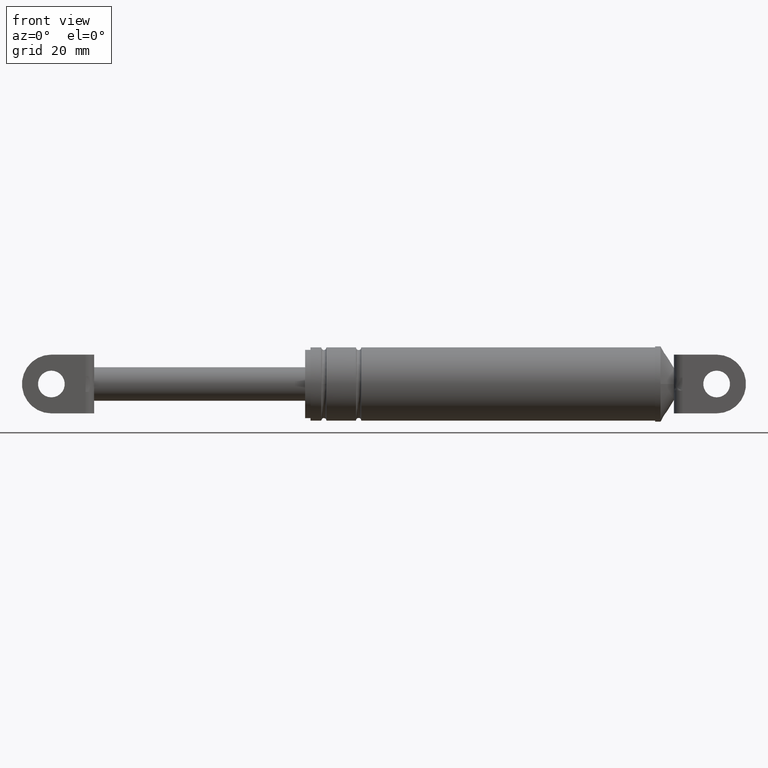
[diagram: clean part render]
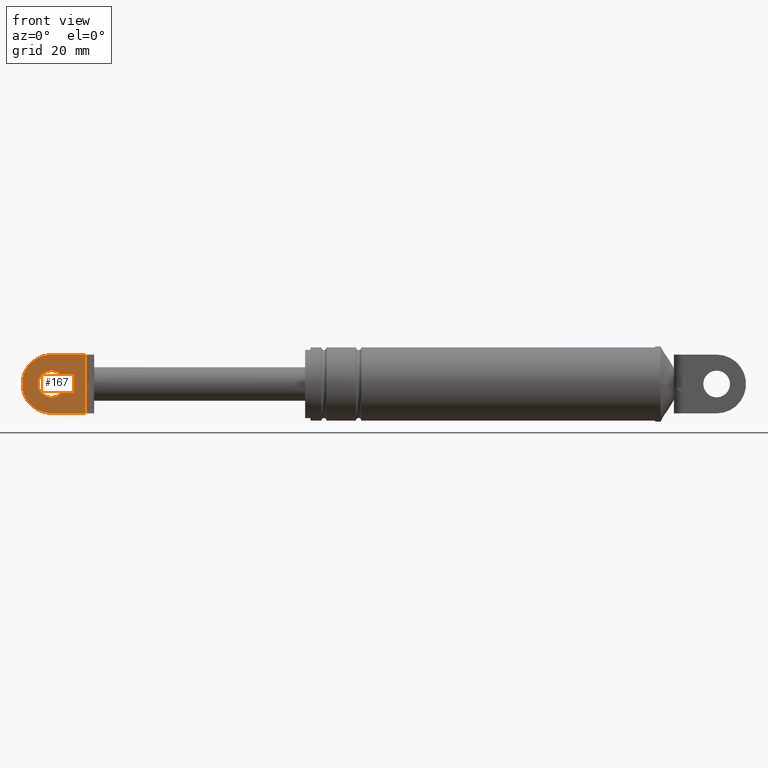
[diagram: same view with one face highlighted and labeled with its STEP entity id]
A machine part, front view. The second image highlights one B-rep face of the part: STEP entity #167.
In plain terms, the highlighted planar face has unit normal (0, 1, 0).
Its self-contained STEP definition (entity closure, byte-faithful):
#167=ADVANCED_FACE('',(#735,#736),#734,.F.);
#734=PLANE('',#1332);
#735=FACE_OUTER_BOUND('',#1333,.T.);
#736=FACE_BOUND('',#1334,.T.);
#1329=CARTESIAN_POINT('',(7.50580265450E+001,-8.69999700000E+000,1.57529320502E+002));
#1330=DIRECTION('',(0.00000000000E+000,1.00000000000E+000,0.00000000000E+000));
#1331=DIRECTION('',(0.00000000000E+000,0.00000000000E+000,1.00000000000E+000));
#1332=AXIS2_PLACEMENT_3D('',#1329,#1330,#1331);
#1333=EDGE_LOOP('',(#1654,#1655,#1656,#1657,#1658,#1659));
#1334=EDGE_LOOP('',(#1660,#1661));
#1654=ORIENTED_EDGE('',*,*,#1829,.F.);
#1655=ORIENTED_EDGE('',*,*,#1848,.T.);
#1656=ORIENTED_EDGE('',*,*,#1801,.T.);
#1657=ORIENTED_EDGE('',*,*,#1846,.T.);
#1658=ORIENTED_EDGE('',*,*,#1804,.T.);
#1659=ORIENTED_EDGE('',*,*,#1851,.T.);
#1660=ORIENTED_EDGE('',*,*,#1852,.F.);
#1661=ORIENTED_EDGE('',*,*,#1853,.F.);
#1801=EDGE_CURVE('',#2534,#2527,#2535,.T.);
#1804=EDGE_CURVE('',#2554,#2555,#2556,.T.);
#1829=EDGE_CURVE('',#2718,#2725,#2726,.T.);
#1846=EDGE_CURVE('',#2527,#2554,#2836,.T.);
#1848=EDGE_CURVE('',#2718,#2534,#2848,.T.);
#1851=EDGE_CURVE('',#2555,#2725,#2868,.T.);
#1852=EDGE_CURVE('',#2874,#2875,#2876,.T.);
#1853=EDGE_CURVE('',#2875,#2874,#2882,.T.);
#2527=VERTEX_POINT('',#3363);
#2534=VERTEX_POINT('',#3368);
#2535=(BOUNDED_CURVE() B_SPLINE_CURVE(3,(#3369,#3370,#3371,#3372,#3373,#3374,#3375,#3376,#3377,#3378),.UNSPECIFIED.,.F.,.F.) B_SPLINE_CURVE_WITH_KNOTS((4,2,2,2,4),(0.00000000000E+000,1.48458878572E-003,2.96917757145E-003,4.45376635717E-003,5.93835514290E-003),.UNSPECIFIED.) CURVE() GEOMETRIC_REPRESENTATION_ITEM() RATIONAL_B_SPLINE_CURVE((1.00000000000E+000,1.00000000000E+000,1.00000000000E+000,1.00000000000E+000,1.00000000000E+000,1.00000000000E+000,1.00000000000E+000,1.00000000000E+000,1.00000000000E+000,1.00000000000E+000)) REPRESENTATION_ITEM('') );
#2554=VERTEX_POINT('',#3388);
#2555=VERTEX_POINT('',#3389);
#2556=LINE('',#3390,#3391);
#2718=VERTEX_POINT('',#3489);
#2725=VERTEX_POINT('',#3494);
#2726=LINE('',#3495,#3496);
#2836=LINE('',#3568,#3569);
#2848=LINE('',#3575,#3576);
#2868=CIRCLE('',#3591,1.10000000000E+001);
#2874=VERTEX_POINT('',#3592);
#2875=VERTEX_POINT('',#3593);
#2876=CIRCLE('',#3597,5.00000000000E+000);
#2882=CIRCLE('',#3601,5.00000000000E+000);
#3363=CARTESIAN_POINT('',(1.01246942787E+002,-8.69999700000E+000,1.73697911582E+002));
#3368=CARTESIAN_POINT('',(1.01246942787E+002,-8.69999700000E+000,1.67760729422E+002));
#3369=CARTESIAN_POINT('',(1.01246942787E+002,-8.69999700000E+000,1.67760729422E+002));
#3370=CARTESIAN_POINT('',(1.01246942787E+002,-8.69999700000E+000,1.68255592543E+002));
#3371=CARTESIAN_POINT('',(1.01272482544E+002,-8.69999700000E+000,1.68749899025E+002));
#3372=CARTESIAN_POINT('',(1.01317705682E+002,-8.69999700000E+000,1.69738610499E+002));
#3373=CARTESIAN_POINT('',(1.01336045641E+002,-8.69999700000E+000,1.70233065764E+002));
#3374=CARTESIAN_POINT('',(1.01336105204E+002,-8.69999700000E+000,1.71222829544E+002));
#3375=CARTESIAN_POINT('',(1.01317790582E+002,-8.69999700000E+000,1.71718066519E+002));
#3376=CARTESIAN_POINT('',(1.01272537315E+002,-8.69999700000E+000,1.72707652024E+002));
#3377=CARTESIAN_POINT('',(1.01246942787E+002,-8.69999700000E+000,1.73202343015E+002));
#3378=CARTESIAN_POINT('',(1.01246942787E+002,-8.69999700000E+000,1.73697911582E+002));
#3388=CARTESIAN_POINT('',(1.01246942787E+002,-8.69999700000E+000,1.81729320502E+002));
#3389=CARTESIAN_POINT('',(8.84469418268E+001,-8.69999700000E+000,1.81729320502E+002));
#3390=CARTESIAN_POINT('',(1.01246942787E+002,-8.69999700000E+000,1.81729320502E+002));
#3391=VECTOR('',#3392,1.28000009599E+001);
#3392=DIRECTION('',(-1.00000000000E+000,0.00000000000E+000,0.00000000000E+000));
#3489=CARTESIAN_POINT('',(1.01246942787E+002,-8.69999700000E+000,1.59729320502E+002));
#3494=CARTESIAN_POINT('',(8.84469418268E+001,-8.69999700000E+000,1.59729320502E+002));
#3495=CARTESIAN_POINT('',(1.01246942787E+002,-8.69999700000E+000,1.59729320502E+002));
#3496=VECTOR('',#3497,1.28000009599E+001);
#3497=DIRECTION('',(-1.00000000000E+000,0.00000000000E+000,0.00000000000E+000));
#3568=CARTESIAN_POINT('',(1.01246942787E+002,-8.69999700000E+000,1.73697911582E+002));
#3569=VECTOR('',#3570,8.03140892004E+000);
#3570=DIRECTION('',(0.00000000000E+000,0.00000000000E+000,1.00000000000E+000));
#3575=CARTESIAN_POINT('',(1.01246942787E+002,-8.69999700000E+000,1.59729320502E+002));
#3576=VECTOR('',#3577,8.03140892004E+000);
#3577=DIRECTION('',(0.00000000000E+000,0.00000000000E+000,1.00000000000E+000));
#3588=CARTESIAN_POINT('',(8.84469427867E+001,-8.69999700000E+000,1.70729320502E+002));
#3589=DIRECTION('',(0.00000000000E+000,-1.00000000000E+000,0.00000000000E+000));
#3590=DIRECTION('',(-0.00000000000E+000,-0.00000000000E+000,-1.00000000000E+000));
#3591=AXIS2_PLACEMENT_3D('',#3588,#3589,#3590);
#3592=CARTESIAN_POINT('',(8.84469427867E+001,-8.69999700000E+000,1.65729320502E+002));
#3593=CARTESIAN_POINT('',(8.84469427867E+001,-8.69999700000E+000,1.75729320502E+002));
#3594=CARTESIAN_POINT('',(8.84469427867E+001,-8.69999700000E+000,1.70729320502E+002));
#3595=DIRECTION('',(-0.00000000000E+000,-1.00000000000E+000,0.00000000000E+000));
#3596=DIRECTION('',(-1.22460635382E-016,0.00000000000E+000,1.00000000000E+000));
#3597=AXIS2_PLACEMENT_3D('',#3594,#3595,#3596);
#3598=CARTESIAN_POINT('',(8.84469427867E+001,-8.69999700000E+000,1.70729320502E+002));
#3599=DIRECTION('',(-0.00000000000E+000,-1.00000000000E+000,0.00000000000E+000));
#3600=DIRECTION('',(-1.22460635382E-016,0.00000000000E+000,1.00000000000E+000));
#3601=AXIS2_PLACEMENT_3D('',#3598,#3599,#3600);